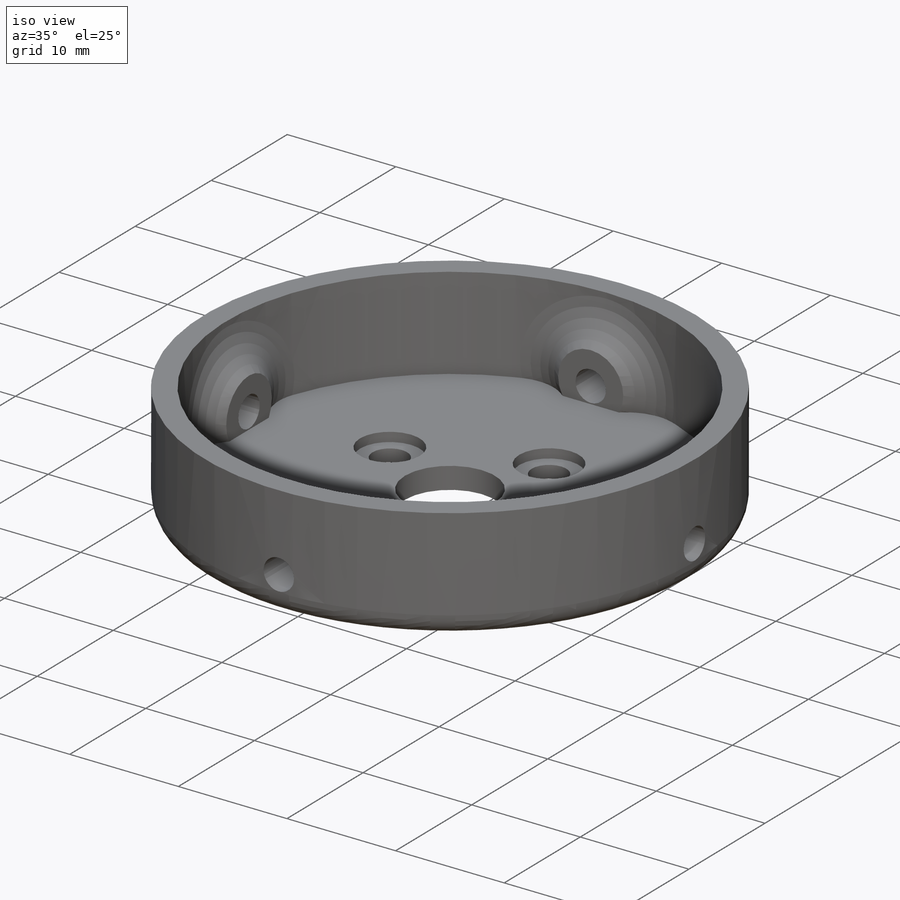
[diagram: iso view]
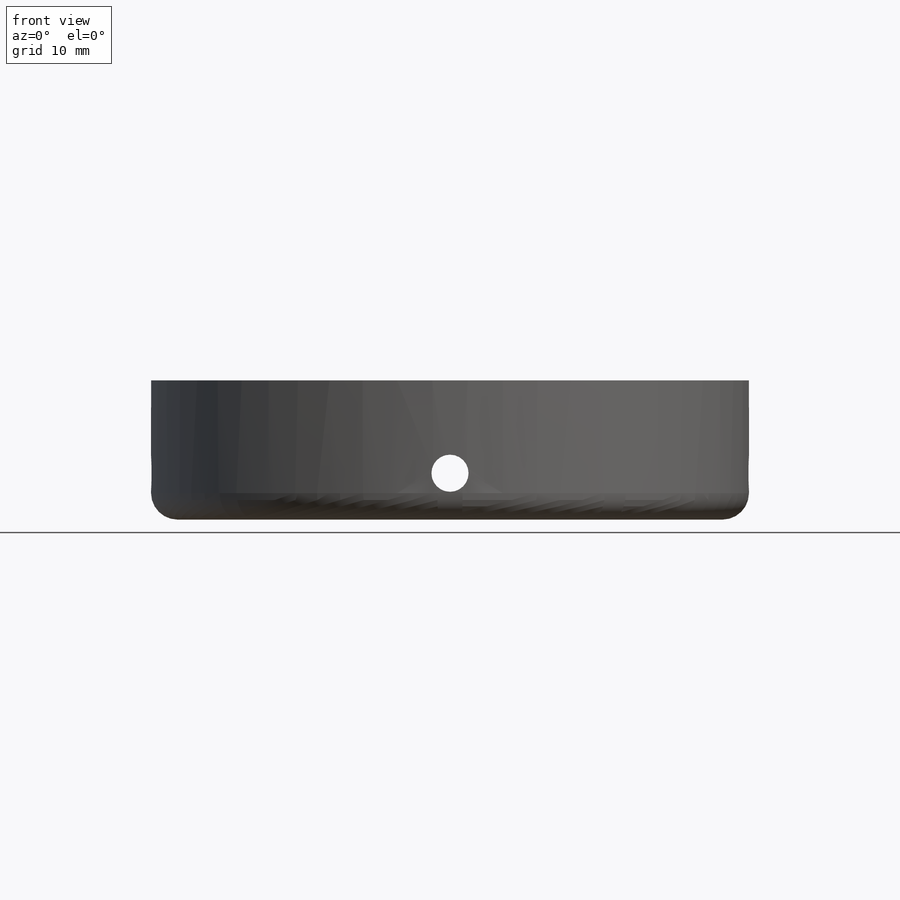
[diagram: front view]
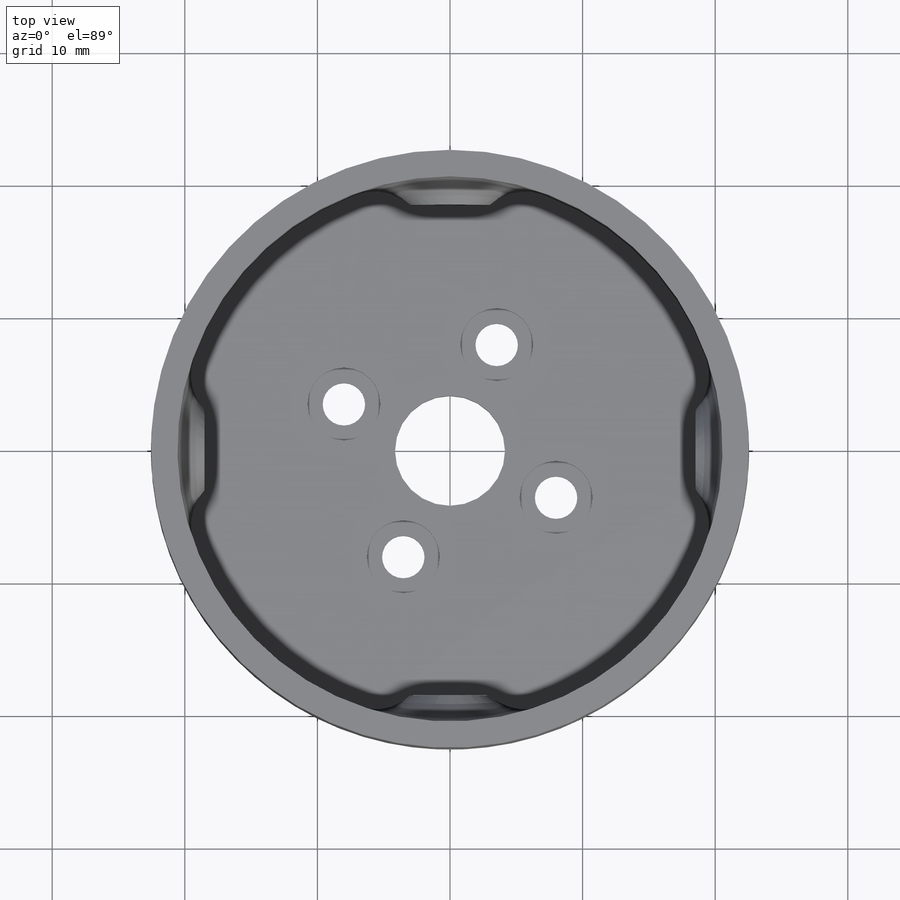
[diagram: top view]
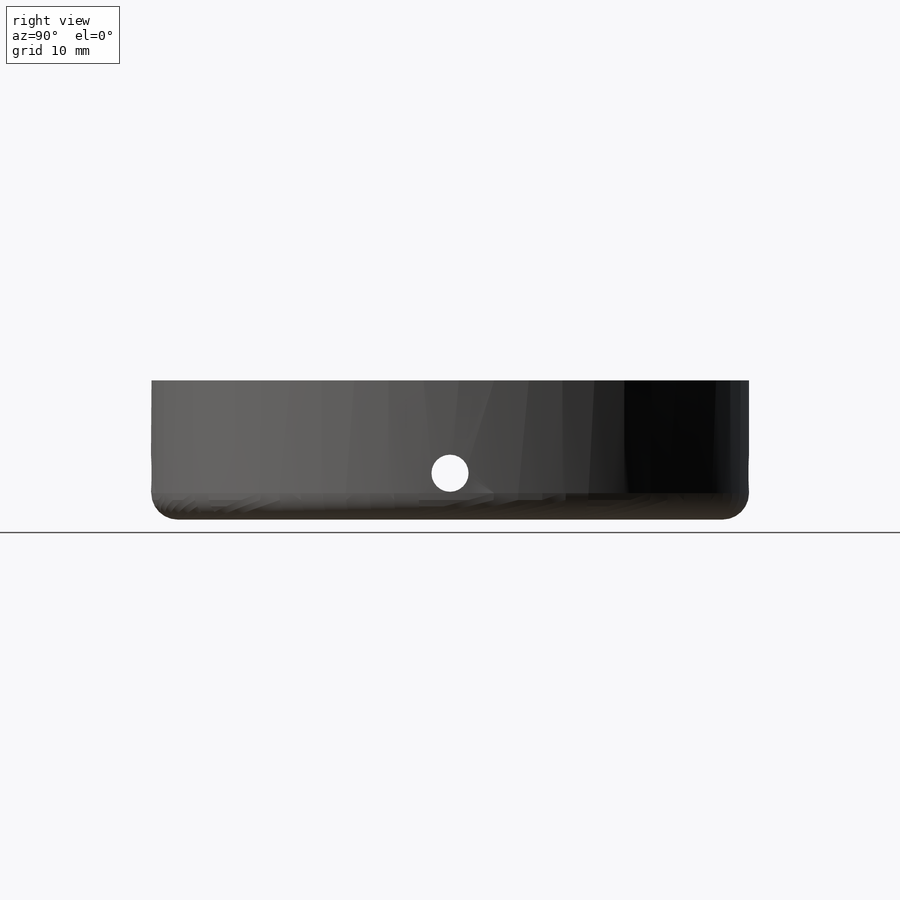
[diagram: right view]
SOLIDWORKS PART (.sldprt)
format: sldprt  version: not decoded by parser v0  size: 632,320 bytes
history: native  units: mm
features: sketch x7, cut_extrude x4, pattern_circular x2, fillet x2, material x1, revolve x1, plane x1, extrude x1 (+13 scaffold rows collapsed)
feature tree (32):
  scaffold x13  (default folders/planes/origin — collapsed)
  material  "Material <not specified>"
  sketch  "Sketch1"  dims[c1.D1=2.0mm c1.D2=22.45mm c1.D3=10.5mm c2.D2=20.55mm]
  revolve  "Revolve1"  Angle=360deg
  sketch  "Sketch2"  dims[D1=8.0mm]
  cut_extrude  "Cut-Extrude1"  Depth=10mm
  sketch  "Sketch3"  dims[D1=2.5mm D2=7.0mm]
  cut_extrude  "Cut-Extrude3"  Depth=60mm
  pattern_circular  "CirPattern1"  Count=4 Angle=90deg
  fillet  "Fillet1"  Radius=2mm
  plane  "Plane1"  Offset=18.5mm
  sketch  "Sketch8"  dims[D1=6.0mm]
  extrude  "Boss-Extrude1"  [1 undecoded]
  fillet  "Fillet3"  Radius=4mm
  pattern_circular  "CirPattern3"  Count=4 Angle=90deg
  sketch  "Sketch9"
  sketch  "Sketch12"  dims[c1.D3=2.9mm c1.D4=2.9mm c1.D1=15.73mm c1.D2=15.73mm c2.D1=3.52mm c2.D2=8.0mm c2.D3=4.0]
  cut_extrude  "Cut-Extrude7"  [1 undecoded]
  sketch  "Sketch13"  dims[D1=5.2mm]
  cut_extrude  "Cut-Extrude8"  Depth=0.85mm
decode coverage: 14 of 17 modeling features carry decoded parameters
note: 2 parameter values undecoded
note: suppression state not decoded; provenance and decode notes live in map.json
